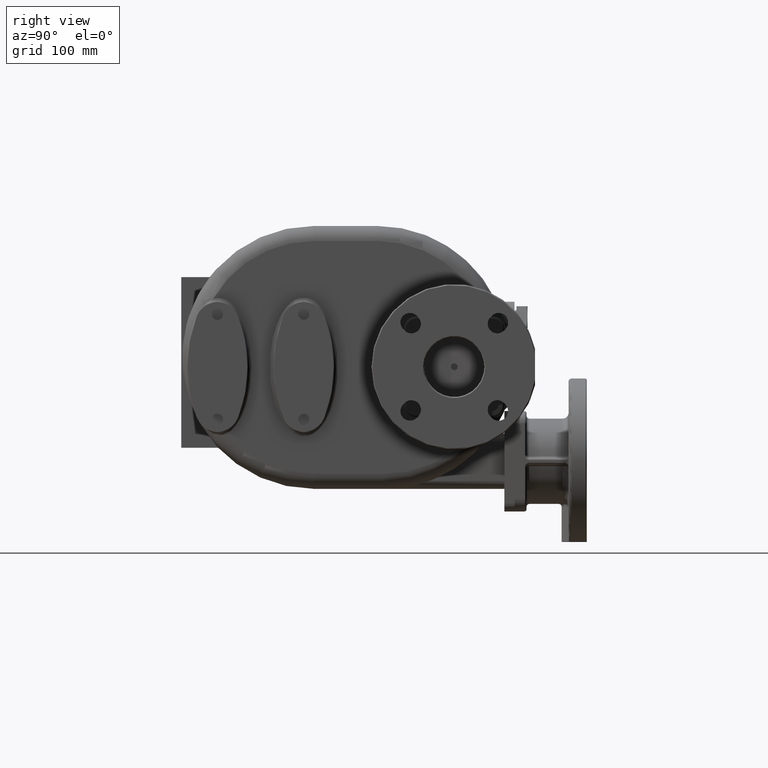
[diagram: clean part render]
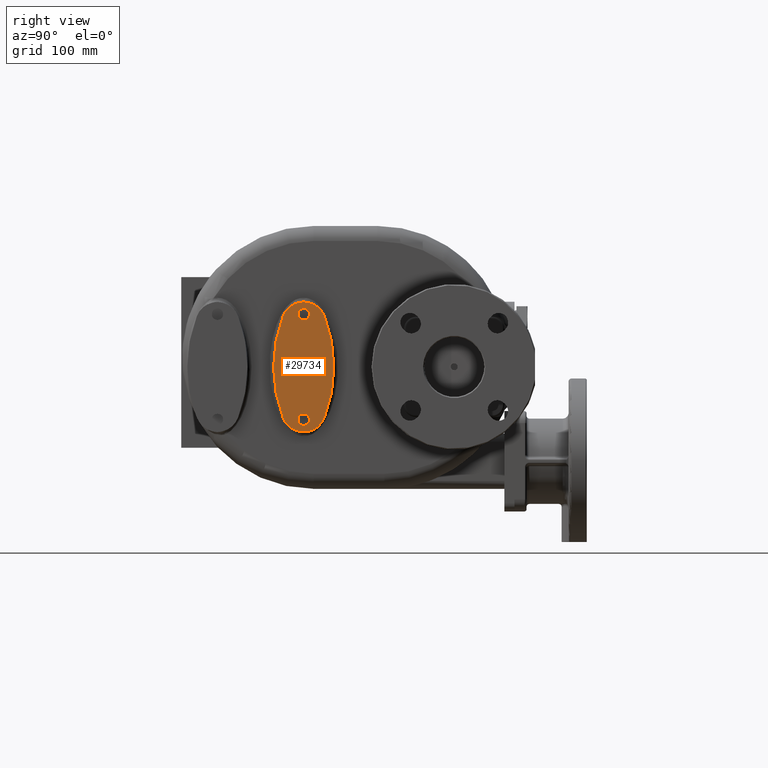
[diagram: same view with one face highlighted and labeled with its STEP entity id]
A machine part, right view. The second image highlights one B-rep face of the part: STEP entity #29734.
In plain terms, the highlighted planar face has unit normal (1, 0, 0).
Its self-contained STEP definition (entity closure, byte-faithful):
#11503=CARTESIAN_POINT('',(1.1E2,2.319999999963E2,-9.481681545673E0));
#11504=DIRECTION('',(1.E0,0.E0,0.E0));
#11505=DIRECTION('',(0.E0,-9.322295967066E-1,3.618673500390E-1));
#11506=AXIS2_PLACEMENT_3D('',#11503,#11504,#11505);
#11508=CARTESIAN_POINT('',(1.1E2,1.22E2,3.322663690865E1));
#11509=DIRECTION('',(1.E0,0.E0,0.E0));
#11510=DIRECTION('',(0.E0,9.323701608822E-1,3.615050249949E-1));
#11511=AXIS2_PLACEMENT_3D('',#11508,#11509,#11510);
#11513=CARTESIAN_POINT('',(1.1E2,1.2E1,-9.481681545673E0));
#11514=DIRECTION('',(1.E0,0.E0,0.E0));
#11515=DIRECTION('',(0.E0,9.322295967101E-1,-3.618673500301E-1));
#11516=AXIS2_PLACEMENT_3D('',#11513,#11514,#11515);
#11518=CARTESIAN_POINT('',(1.1E2,1.22E2,-5.219E1));
#11519=DIRECTION('',(1.E0,0.E0,0.E0));
#11520=DIRECTION('',(0.E0,-9.323701608822E-1,-3.615050249948E-1));
#11521=AXIS2_PLACEMENT_3D('',#11518,#11519,#11520);
#11523=CARTESIAN_POINT('',(1.1E2,1.22E2,-6.199E1));
#11524=DIRECTION('',(1.E0,0.E0,0.E0));
#11525=DIRECTION('',(0.E0,0.E0,-1.E0));
#11526=AXIS2_PLACEMENT_3D('',#11523,#11524,#11525);
#11528=CARTESIAN_POINT('',(1.1E2,1.22E2,-6.199E1));
#11529=DIRECTION('',(1.E0,0.E0,0.E0));
#11530=DIRECTION('',(0.E0,0.E0,1.E0));
#11531=AXIS2_PLACEMENT_3D('',#11528,#11529,#11530);
#11533=CARTESIAN_POINT('',(1.1E2,1.22E2,4.301E1));
#11534=DIRECTION('',(-1.E0,0.E0,0.E0));
#11535=DIRECTION('',(0.E0,0.E0,1.E0));
#11536=AXIS2_PLACEMENT_3D('',#11533,#11534,#11535);
#11538=CARTESIAN_POINT('',(1.1E2,1.22E2,4.301E1));
#11539=DIRECTION('',(-1.E0,0.E0,0.E0));
#11540=DIRECTION('',(0.E0,0.E0,-1.E0));
#11541=AXIS2_PLACEMENT_3D('',#11538,#11539,#11540);
#16524=CARTESIAN_POINT('',(1.1E2,1.014878564606E2,4.117974745854E1));
#16525=CARTESIAN_POINT('',(1.1E2,1.014878564606E2,-6.014311054989E1));
#16526=VERTEX_POINT('',#16524);
#16527=VERTEX_POINT('',#16525);
#16528=CARTESIAN_POINT('',(1.1E2,1.425121435394E2,-6.014311054989E1));
#16529=VERTEX_POINT('',#16528);
#16530=CARTESIAN_POINT('',(1.1E2,1.425121435394E2,4.117974745854E1));
#16531=VERTEX_POINT('',#16530);
#16532=CARTESIAN_POINT('',(1.1E2,1.22E2,-6.774E1));
#16533=CARTESIAN_POINT('',(1.1E2,1.22E2,-5.624E1));
#16534=VERTEX_POINT('',#16532);
#16535=VERTEX_POINT('',#16533);
#16536=CARTESIAN_POINT('',(1.1E2,1.22E2,4.876E1));
#16537=CARTESIAN_POINT('',(1.1E2,1.22E2,3.726E1));
#16538=VERTEX_POINT('',#16536);
#16539=VERTEX_POINT('',#16537);
#29711=CARTESIAN_POINT('',(1.1E2,1.22E2,-9.49E0));
#29712=DIRECTION('',(1.E0,0.E0,0.E0));
#29713=DIRECTION('',(0.E0,0.E0,1.E0));
#29714=AXIS2_PLACEMENT_3D('',#29711,#29712,#29713);
#29715=PLANE('',#29714);
#29716=ORIENTED_EDGE('',*,*,#29647,.F.);
#29717=ORIENTED_EDGE('',*,*,#29662,.F.);
#29718=ORIENTED_EDGE('',*,*,#29677,.F.);
#29719=ORIENTED_EDGE('',*,*,#29704,.F.);
#29720=EDGE_LOOP('',(#29716,#29717,#29718,#29719));
#29721=FACE_OUTER_BOUND('',#29720,.F.);
#29723=ORIENTED_EDGE('',*,*,#29722,.T.);
#29725=ORIENTED_EDGE('',*,*,#29724,.T.);
#29726=EDGE_LOOP('',(#29723,#29725));
#29727=FACE_BOUND('',#29726,.F.);
#29729=ORIENTED_EDGE('',*,*,#29728,.F.);
#29731=ORIENTED_EDGE('',*,*,#29730,.F.);
#29732=EDGE_LOOP('',(#29729,#29731));
#29733=FACE_BOUND('',#29732,.F.);
#29734=ADVANCED_FACE('',(#29721,#29727,#29733),#29715,.T.);
#11507=CIRCLE('',#11506,1.399999999966E2);
#11512=CIRCLE('',#11511,2.2E1);
#11517=CIRCLE('',#11516,1.4E2);
#11522=CIRCLE('',#11521,2.2E1);
#11527=CIRCLE('',#11526,5.75E0);
#11532=CIRCLE('',#11531,5.75E0);
#11537=CIRCLE('',#11536,5.75E0);
#11542=CIRCLE('',#11541,5.75E0);
#29647=EDGE_CURVE('',#16526,#16527,#11507,.T.);
#29662=EDGE_CURVE('',#16531,#16526,#11512,.T.);
#29677=EDGE_CURVE('',#16529,#16531,#11517,.T.);
#29704=EDGE_CURVE('',#16527,#16529,#11522,.T.);
#29722=EDGE_CURVE('',#16534,#16535,#11527,.T.);
#29724=EDGE_CURVE('',#16535,#16534,#11532,.T.);
#29728=EDGE_CURVE('',#16538,#16539,#11537,.T.);
#29730=EDGE_CURVE('',#16539,#16538,#11542,.T.);